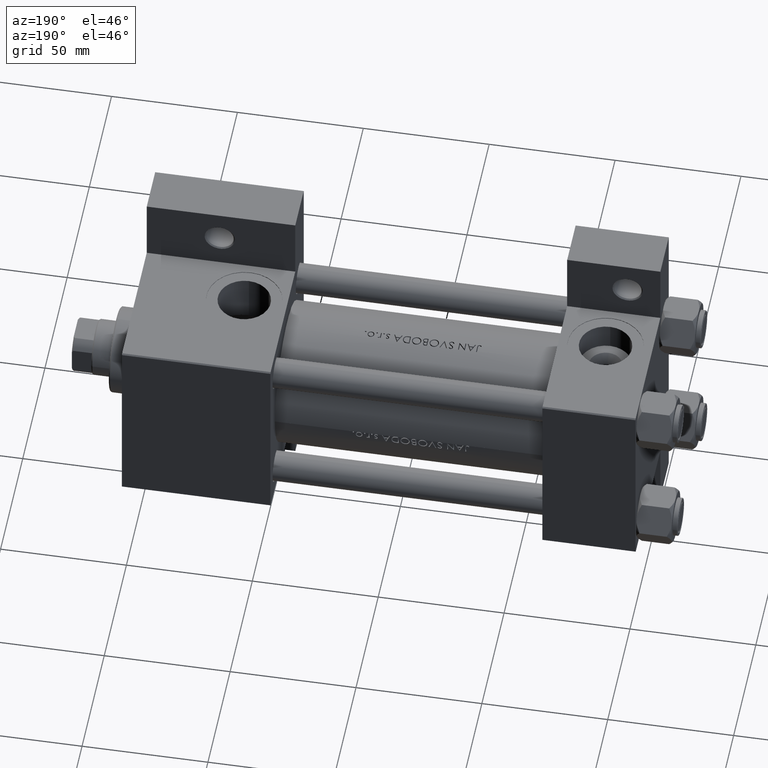
[diagram: clean part render]
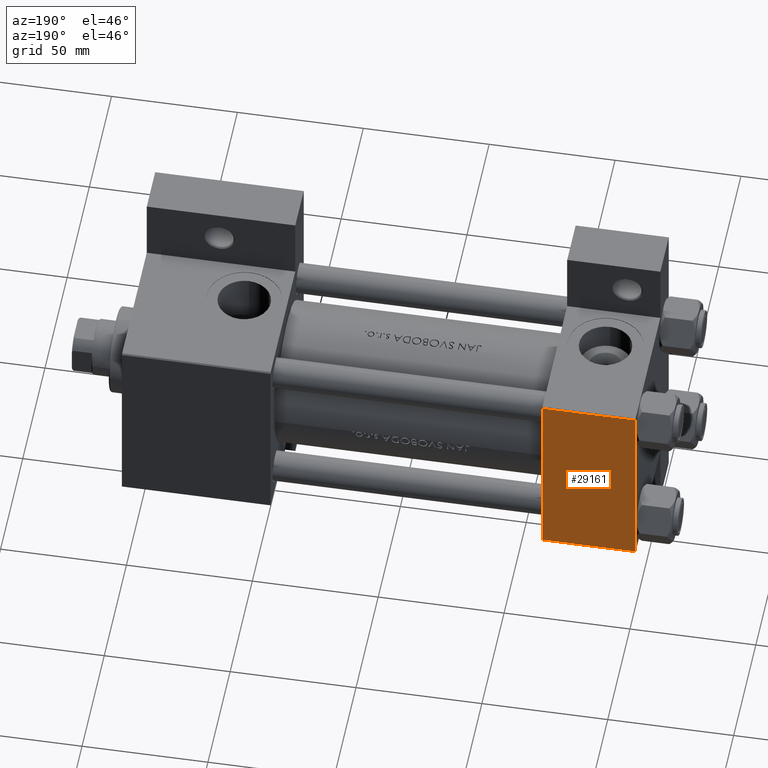
[diagram: same view with one face highlighted and labeled with its STEP entity id]
A machine part, auxiliary view. The second image highlights one B-rep face of the part: STEP entity #29161.
In plain terms, the highlighted planar face has unit normal (0, -1, -0).
Its self-contained STEP definition (entity closure, byte-faithful):
#4297 = EDGE_CURVE ( 'NONE', #43814, #17354, #11399, .T. ) ;
#6125 = CARTESIAN_POINT ( 'NONE',  ( 37.00000000000000000, -37.00000000000000711, 37.49999999999999289 ) ) ;
#6826 = CARTESIAN_POINT ( 'NONE',  ( 37.00000000000000000, -37.00000000000000711, 37.49999999999999289 ) ) ;
#7526 = DIRECTION ( 'NONE',  ( 0.000000000000000000, 9.251858538542971581E-17, -1.000000000000000000 ) ) ;
#10474 = DIRECTION ( 'NONE',  ( 0.000000000000000000, -1.000000000000000000, -9.251858538542971581E-17 ) ) ;
#11275 = FACE_OUTER_BOUND ( 'NONE', #23840, .T. ) ;
#11399 = LINE ( 'NONE', #48997, #37607 ) ;
#13849 = DIRECTION ( 'NONE',  ( 1.000000000000000000, 0.000000000000000000, 0.000000000000000000 ) ) ;
#15881 = LINE ( 'NONE', #31060, #24536 ) ;
#15926 = VECTOR ( 'NONE', #10474, 1000.000000000000000 ) ;
#16367 = VERTEX_POINT ( 'NONE', #6826 ) ;
#17354 = VERTEX_POINT ( 'NONE', #22021 ) ;
#17424 = CARTESIAN_POINT ( 'NONE',  ( 0.000000000000000000, -37.00000000000000711, 37.49999999999999289 ) ) ;
#22021 = CARTESIAN_POINT ( 'NONE',  ( 0.000000000000000000, 36.99999999999999289, 37.50000000000000000 ) ) ;
#22718 = DIRECTION ( 'NONE',  ( 0.000000000000000000, 1.000000000000000000, 9.251858538542971581E-17 ) ) ;
#23278 = ORIENTED_EDGE ( 'NONE', *, *, #4297, .T. ) ;
#23840 = EDGE_LOOP ( 'NONE', ( #28328, #30854, #24964, #23278 ) ) ;
#24446 = LINE ( 'NONE', #44813, #15926 ) ;
#24536 = VECTOR ( 'NONE', #25913, 1000.000000000000000 ) ;
#24833 = VERTEX_POINT ( 'NONE', #17424 ) ;
#24964 = ORIENTED_EDGE ( 'NONE', *, *, #37793, .F. ) ;
#25913 = DIRECTION ( 'NONE',  ( 0.000000000000000000, -1.000000000000000000, -9.251858538542971581E-17 ) ) ;
#26445 = PLANE ( 'NONE',  #35509 ) ;
#28328 = ORIENTED_EDGE ( 'NONE', *, *, #41769, .T. ) ;
#29161 = ADVANCED_FACE ( 'NONE', ( #11275 ), #26445, .F. ) ;
#30568 = EDGE_CURVE ( 'NONE', #24833, #16367, #40221, .T. ) ;
#30854 = ORIENTED_EDGE ( 'NONE', *, *, #30568, .T. ) ;
#31060 = CARTESIAN_POINT ( 'NONE',  ( 37.00000000000000000, 37.49999999999999289, 37.50000000000000000 ) ) ;
#33140 = CARTESIAN_POINT ( 'NONE',  ( 37.00000000000000000, 36.99999999999999289, 37.50000000000000000 ) ) ;
#35509 = AXIS2_PLACEMENT_3D ( 'NONE', #41630, #7526, #22718 ) ;
#37607 = VECTOR ( 'NONE', #45994, 1000.000000000000000 ) ;
#37793 = EDGE_CURVE ( 'NONE', #43814, #16367, #15881, .T. ) ;
#40221 = LINE ( 'NONE', #6125, #43465 ) ;
#41630 = CARTESIAN_POINT ( 'NONE',  ( 37.00000000000000000, 37.49999999999999289, 37.50000000000000000 ) ) ;
#41769 = EDGE_CURVE ( 'NONE', #17354, #24833, #24446, .T. ) ;
#43465 = VECTOR ( 'NONE', #13849, 1000.000000000000000 ) ;
#43814 = VERTEX_POINT ( 'NONE', #33140 ) ;
#44813 = CARTESIAN_POINT ( 'NONE',  ( 0.000000000000000000, 37.49999999999999289, 37.50000000000000000 ) ) ;
#45994 = DIRECTION ( 'NONE',  ( -1.000000000000000000, 0.000000000000000000, 0.000000000000000000 ) ) ;
#48997 = CARTESIAN_POINT ( 'NONE',  ( 0.000000000000000000, 36.99999999999999289, 37.50000000000000000 ) ) ;